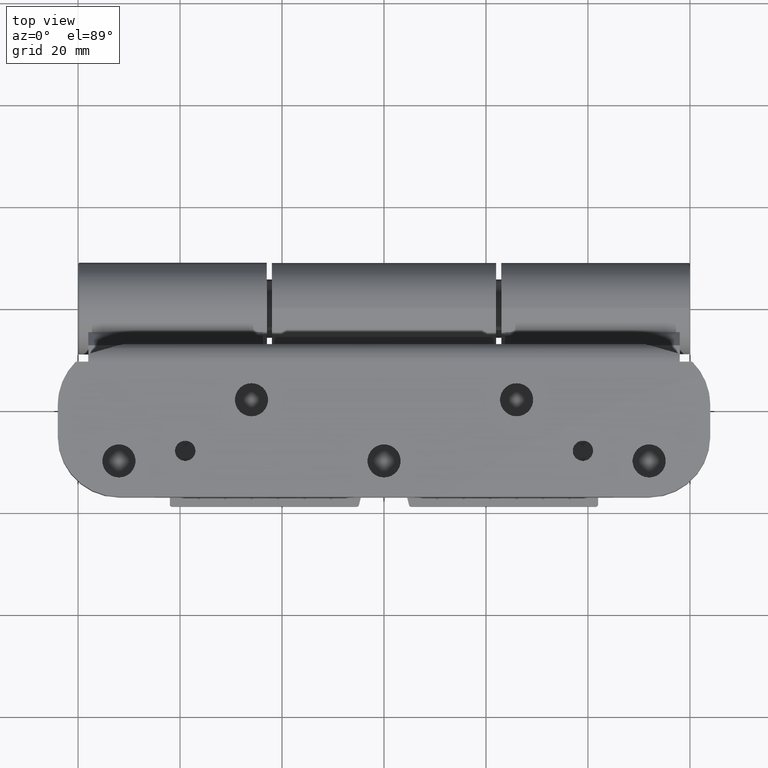
[diagram: clean part render]
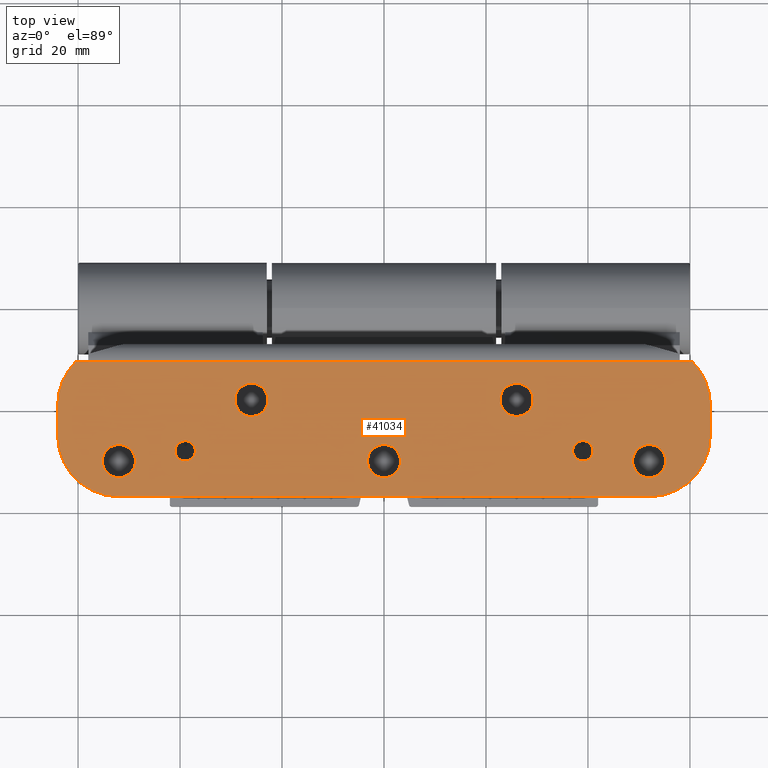
[diagram: same view with one face highlighted and labeled with its STEP entity id]
A machine part, top view. The second image highlights one B-rep face of the part: STEP entity #41034.
In plain terms, the highlighted planar face has unit normal (0, -0, 1).
Its self-contained STEP definition (entity closure, byte-faithful):
#560 = CIRCLE ( 'NONE', #54101, 11.99999999999998934 ) ;
#714 = CARTESIAN_POINT ( 'NONE',  ( 2.775557561562891351E-14, 51.99999999999999289, 0.000000000000000000 ) ) ;
#1092 = EDGE_LOOP ( 'NONE', ( #42553, #22039 ) ) ;
#1122 = DIRECTION ( 'NONE',  ( 5.916456789157588541E-31, 1.295404630198729935E-30, 1.000000000000000000 ) ) ;
#1731 = CARTESIAN_POINT ( 'NONE',  ( -10.24999999999996447, 51.99999999999997868, 6.938893903907229955E-15 ) ) ;
#1735 = ORIENTED_EDGE ( 'NONE', *, *, #49927, .T. ) ;
#1814 = LINE ( 'NONE', #51822, #15876 ) ;
#1911 = CARTESIAN_POINT ( 'NONE',  ( -3.749999999999964917, 51.99999999999997868, 6.938893903907229955E-15 ) ) ;
#2353 = EDGE_CURVE ( 'NONE', #16755, #28416, #11041, .T. ) ;
#2354 = LINE ( 'NONE', #19106, #8115 ) ;
#2915 = CARTESIAN_POINT ( 'NONE',  ( -18.00000000000002842, -52.00000000000002132, 3.686287386450715076E-15 ) ) ;
#3455 = FACE_BOUND ( 'NONE', #1092, .T. ) ;
#4060 = DIRECTION ( 'NONE',  ( 5.916456789157588541E-31, 1.295404630198729935E-30, 1.000000000000000000 ) ) ;
#4107 = VERTEX_POINT ( 'NONE', #42073 ) ;
#4224 = ORIENTED_EDGE ( 'NONE', *, *, #23170, .T. ) ;
#4265 = FACE_BOUND ( 'NONE', #30705, .T. ) ;
#4662 = CARTESIAN_POINT ( 'NONE',  ( -4.163336342344337027E-14, -64.00000000000000000, 0.000000000000000000 ) ) ;
#4967 = CARTESIAN_POINT ( 'NONE',  ( -26.50000000000003553, -60.47053717304873288, 1.040834085586084257E-14 ) ) ;
#5352 = DIRECTION ( 'NONE',  ( 1.000000000000000000, 6.661338147750980658E-16, 4.740750632337811128E-31 ) ) ;
#6246 = EDGE_CURVE ( 'NONE', #35376, #46714, #28412, .T. ) ;
#6343 = CARTESIAN_POINT ( 'NONE',  ( -10.25000000000003375, -52.00000000000002132, 6.938893903907229955E-15 ) ) ;
#6591 = ORIENTED_EDGE ( 'NONE', *, *, #2353, .T. ) ;
#6663 = ORIENTED_EDGE ( 'NONE', *, *, #37140, .F. ) ;
#6886 = CARTESIAN_POINT ( 'NONE',  ( 4.163336342344337027E-14, 64.00000000000000000, 0.000000000000000000 ) ) ;
#6997 = CARTESIAN_POINT ( 'NONE',  ( -12.00000000000002842, -52.00000000000004263, 3.686287386450715076E-15 ) ) ;
#7618 = CIRCLE ( 'NONE', #41832, 3.250000000000000000 ) ;
#7898 = ORIENTED_EDGE ( 'NONE', *, *, #40430, .T. ) ;
#8115 = VECTOR ( 'NONE', #35891, 1000.000000000000000 ) ;
#8311 = DIRECTION ( 'NONE',  ( -1.224646799147359370E-16, -1.376982494605543984E-30, -1.000000000000000000 ) ) ;
#8331 = EDGE_LOOP ( 'NONE', ( #17570, #20681, #6663, #47958, #19117, #11452, #7898, #4224, #37010, #41591 ) ) ;
#8461 = CARTESIAN_POINT ( 'NONE',  ( -17.99999999999995381, 63.99999999999997158, 3.686287386450715076E-15 ) ) ;
#8570 = DIRECTION ( 'NONE',  ( -1.000000000000000000, -5.782411586589355667E-16, 1.224646799147347537E-16 ) ) ;
#9469 = CARTESIAN_POINT ( 'NONE',  ( -6.999999999999999112, -4.662936703425689024E-15, 6.938893903907228378E-15 ) ) ;
#9549 = VERTEX_POINT ( 'NONE', #45961 ) ;
#9605 = CIRCLE ( 'NONE', #14851, 3.249999999999999556 ) ;
#9634 = DIRECTION ( 'NONE',  ( -6.661338147750984602E-16, -1.000000000000000000, -1.295404630198729585E-30 ) ) ;
#9659 = EDGE_CURVE ( 'NONE', #16586, #44807, #33892, .T. ) ;
#10056 = EDGE_CURVE ( 'NONE', #27083, #24305, #36575, .T. ) ;
#10661 = EDGE_CURVE ( 'NONE', #46137, #24642, #32240, .T. ) ;
#10763 = VERTEX_POINT ( 'NONE', #28988 ) ;
#11041 = CIRCLE ( 'NONE', #11956, 2.000000000000000000 ) ;
#11343 = CIRCLE ( 'NONE', #49075, 3.249999999999999556 ) ;
#11452 = ORIENTED_EDGE ( 'NONE', *, *, #40993, .T. ) ;
#11456 = DIRECTION ( 'NONE',  ( 1.000000000000000000, 0.000000000000000000, 6.018531076210112041E-31 ) ) ;
#11598 = EDGE_CURVE ( 'NONE', #14594, #46137, #37929, .T. ) ;
#11610 = CARTESIAN_POINT ( 'NONE',  ( -7.000000000000033751, -52.00000000000002132, 6.938893903907228378E-15 ) ) ;
#11767 = EDGE_LOOP ( 'NONE', ( #46065, #17457 ) ) ;
#11956 = AXIS2_PLACEMENT_3D ( 'NONE', #15023, #49100, #11456 ) ;
#12033 = AXIS2_PLACEMENT_3D ( 'NONE', #6997, #24601, #19914 ) ;
#12207 = ORIENTED_EDGE ( 'NONE', *, *, #51873, .T. ) ;
#12904 = CARTESIAN_POINT ( 'NONE',  ( -26.49999999999996803, 57.99999999999997868, 6.938893903907228378E-15 ) ) ;
#12927 = AXIS2_PLACEMENT_3D ( 'NONE', #21098, #4060, #46642 ) ;
#13022 = CARTESIAN_POINT ( 'NONE',  ( -26.50000000000000000, -1.765254609154010259E-14, 6.938893903907228378E-15 ) ) ;
#13033 = AXIS2_PLACEMENT_3D ( 'NONE', #34023, #37622, #49968 ) ;
#13343 = EDGE_LOOP ( 'NONE', ( #12207, #14859 ) ) ;
#13554 = DIRECTION ( 'NONE',  ( 6.661338147750984602E-16, 1.000000000000000000, 1.295404630198729585E-30 ) ) ;
#13754 = AXIS2_PLACEMENT_3D ( 'NONE', #36567, #24749, #20611 ) ;
#14422 = VERTEX_POINT ( 'NONE', #1731 ) ;
#14594 = VERTEX_POINT ( 'NONE', #16256 ) ;
#14851 = AXIS2_PLACEMENT_3D ( 'NONE', #47005, #1122, #39040 ) ;
#14859 = ORIENTED_EDGE ( 'NONE', *, *, #6246, .T. ) ;
#15023 = CARTESIAN_POINT ( 'NONE',  ( -9.000000000000035527, -39.00000000000001421, 2.168404344971008868E-16 ) ) ;
#15083 = CARTESIAN_POINT ( 'NONE',  ( -6.999999999999980460, 38.99999999999998579, 2.168404344971020947E-16 ) ) ;
#15462 = CARTESIAN_POINT ( 'NONE',  ( -18.99999999999998579, 25.99999999999998579, 2.168404344971008868E-16 ) ) ;
#15683 = CARTESIAN_POINT ( 'NONE',  ( -7.000000000000035527, -39.00000000000001421, 2.168404344971020947E-16 ) ) ;
#15816 = DIRECTION ( 'NONE',  ( -1.224646799147347537E-16, -1.376982494605543108E-30, -1.000000000000000000 ) ) ;
#15876 = VECTOR ( 'NONE', #19104, 1000.000000000000000 ) ;
#16087 = FACE_BOUND ( 'NONE', #19542, .T. ) ;
#16225 = CIRCLE ( 'NONE', #49571, 3.250000000000000000 ) ;
#16256 = CARTESIAN_POINT ( 'NONE',  ( -18.00000000000003553, -64.00000000000002842, 3.686287386450715076E-15 ) ) ;
#16279 = DIRECTION ( 'NONE',  ( 5.916456789157588541E-31, 1.295404630198729935E-30, 1.000000000000000000 ) ) ;
#16348 = CARTESIAN_POINT ( 'NONE',  ( 4.163336342344337027E-14, 64.00000000000000000, 0.000000000000000000 ) ) ;
#16493 = DIRECTION ( 'NONE',  ( -1.224646799147359370E-16, -1.376982494605543984E-30, -1.000000000000000000 ) ) ;
#16586 = VERTEX_POINT ( 'NONE', #38134 ) ;
#16673 = EDGE_CURVE ( 'NONE', #46107, #14422, #22903, .T. ) ;
#16755 = VERTEX_POINT ( 'NONE', #51550 ) ;
#16763 = EDGE_CURVE ( 'NONE', #51784, #39099, #1814, .T. ) ;
#16935 = DIRECTION ( 'NONE',  ( 5.916456789157588541E-31, 1.295404630198729935E-30, 1.000000000000000000 ) ) ;
#17027 = VERTEX_POINT ( 'NONE', #42179 ) ;
#17249 = CARTESIAN_POINT ( 'NONE',  ( -8.999999999999980460, 38.99999999999998579, 2.168404344971008868E-16 ) ) ;
#17457 = ORIENTED_EDGE ( 'NONE', *, *, #47047, .T. ) ;
#17570 = ORIENTED_EDGE ( 'NONE', *, *, #46373, .F. ) ;
#18498 = EDGE_CURVE ( 'NONE', #30611, #10763, #16225, .T. ) ;
#18566 = CARTESIAN_POINT ( 'NONE',  ( -26.49999999999996803, 60.47053717304866893, 6.938893903907228378E-15 ) ) ;
#18658 = CARTESIAN_POINT ( 'NONE',  ( -12.00000000000003908, -64.00000000000002842, 3.686287386450715076E-15 ) ) ;
#19104 = DIRECTION ( 'NONE',  ( 6.661338147750984602E-16, 1.000000000000000000, 1.295404630198729585E-30 ) ) ;
#19106 = CARTESIAN_POINT ( 'NONE',  ( 4.163336342344337027E-14, 64.00000000000000000, 0.000000000000000000 ) ) ;
#19117 = ORIENTED_EDGE ( 'NONE', *, *, #28355, .T. ) ;
#19264 = DIRECTION ( 'NONE',  ( -6.661338147750984602E-16, -1.000000000000000000, -1.295404630198729585E-30 ) ) ;
#19542 = EDGE_LOOP ( 'NONE', ( #1735, #40909 ) ) ;
#19914 = DIRECTION ( 'NONE',  ( -1.000000000000000000, -5.782411586589355667E-16, 1.224646799147347537E-16 ) ) ;
#19937 = FACE_OUTER_BOUND ( 'NONE', #8331, .T. ) ;
#20611 = DIRECTION ( 'NONE',  ( 1.000000000000000000, 0.000000000000000000, 6.018531076210112041E-31 ) ) ;
#20620 = ORIENTED_EDGE ( 'NONE', *, *, #9659, .T. ) ;
#20681 = ORIENTED_EDGE ( 'NONE', *, *, #16763, .T. ) ;
#20954 = CARTESIAN_POINT ( 'NONE',  ( -11.99999999999995914, 51.99999999999997158, 3.686287386450715076E-15 ) ) ;
#20997 = EDGE_CURVE ( 'NONE', #41976, #40957, #37782, .T. ) ;
#21029 = FACE_BOUND ( 'NONE', #11767, .T. ) ;
#21098 = CARTESIAN_POINT ( 'NONE',  ( -7.000000000000033751, -52.00000000000002132, 6.938893903907228378E-15 ) ) ;
#21375 = EDGE_CURVE ( 'NONE', #44807, #16586, #40123, .T. ) ;
#21726 = VECTOR ( 'NONE', #13554, 1000.000000000000000 ) ;
#22039 = ORIENTED_EDGE ( 'NONE', *, *, #51163, .T. ) ;
#22617 = CARTESIAN_POINT ( 'NONE',  ( -3.749999999999999556, -2.498001805406620754E-15, 6.938893903907229955E-15 ) ) ;
#22631 = VECTOR ( 'NONE', #41227, 1000.000000000000000 ) ;
#22747 = CARTESIAN_POINT ( 'NONE',  ( -15.75000000000001066, -26.00000000000001066, 2.168404344971028096E-16 ) ) ;
#22895 = AXIS2_PLACEMENT_3D ( 'NONE', #17249, #51064, #38710 ) ;
#22903 = CIRCLE ( 'NONE', #38684, 3.250000000000000000 ) ;
#22970 = AXIS2_PLACEMENT_3D ( 'NONE', #45917, #16493, #33274 ) ;
#22974 = CARTESIAN_POINT ( 'NONE',  ( -6.999999999999964473, 51.99999999999997868, 6.938893903907228378E-15 ) ) ;
#23170 = EDGE_CURVE ( 'NONE', #27733, #24642, #40714, .T. ) ;
#23589 = CIRCLE ( 'NONE', #13033, 3.250000000000000000 ) ;
#24229 = CARTESIAN_POINT ( 'NONE',  ( -10.99999999999998046, 38.99999999999998579, 2.168404344971020947E-16 ) ) ;
#24263 = DIRECTION ( 'NONE',  ( 5.916456789157588541E-31, 1.295404630198729935E-30, 1.000000000000000000 ) ) ;
#24305 = VERTEX_POINT ( 'NONE', #24229 ) ;
#24323 = CARTESIAN_POINT ( 'NONE',  ( -19.00000000000001066, -26.00000000000001421, 2.168404344971008868E-16 ) ) ;
#24601 = DIRECTION ( 'NONE',  ( 1.224646799147359370E-16, 1.376982494605543984E-30, 1.000000000000000000 ) ) ;
#24642 = VERTEX_POINT ( 'NONE', #42867 ) ;
#24749 = DIRECTION ( 'NONE',  ( 5.916456789157588541E-31, 1.295404630198729935E-30, 1.000000000000000000 ) ) ;
#24766 = AXIS2_PLACEMENT_3D ( 'NONE', #20954, #8311, #8570 ) ;
#26008 = DIRECTION ( 'NONE',  ( 1.000000000000000000, 0.000000000000000000, 6.018531076210112041E-31 ) ) ;
#26667 = LINE ( 'NONE', #31314, #45714 ) ;
#27083 = VERTEX_POINT ( 'NONE', #15083 ) ;
#27354 = DIRECTION ( 'NONE',  ( 5.916456789157588541E-31, 1.295404630198729935E-30, 1.000000000000000000 ) ) ;
#27401 = EDGE_CURVE ( 'NONE', #24305, #27083, #43097, .T. ) ;
#27610 = EDGE_LOOP ( 'NONE', ( #44576, #29860 ) ) ;
#27733 = VERTEX_POINT ( 'NONE', #714 ) ;
#27831 = DIRECTION ( 'NONE',  ( 1.000000000000000000, 1.067522139062650671E-15, 5.925938290422264567E-31 ) ) ;
#28355 = EDGE_CURVE ( 'NONE', #40957, #51191, #44900, .T. ) ;
#28412 = CIRCLE ( 'NONE', #31900, 3.249999999999999556 ) ;
#28416 = VERTEX_POINT ( 'NONE', #15683 ) ;
#28988 = CARTESIAN_POINT ( 'NONE',  ( -10.24999999999999822, -6.429861391721865302E-15, 6.938893903907229955E-15 ) ) ;
#29585 = DIRECTION ( 'NONE',  ( 1.000000000000000000, 1.067522139062650671E-15, 5.925938290422264567E-31 ) ) ;
#29860 = ORIENTED_EDGE ( 'NONE', *, *, #27401, .T. ) ;
#30167 = EDGE_CURVE ( 'NONE', #17027, #4107, #42392, .T. ) ;
#30611 = VERTEX_POINT ( 'NONE', #22617 ) ;
#30705 = EDGE_LOOP ( 'NONE', ( #20620, #36808 ) ) ;
#31314 = CARTESIAN_POINT ( 'NONE',  ( -26.49999999999995737, 63.99999999999997158, 6.938893903907228378E-15 ) ) ;
#31900 = AXIS2_PLACEMENT_3D ( 'NONE', #24323, #32564, #49587 ) ;
#32240 = CIRCLE ( 'NONE', #12033, 12.00000000000000355 ) ;
#32564 = DIRECTION ( 'NONE',  ( 5.916456789157588541E-31, 1.295404630198729935E-30, 1.000000000000000000 ) ) ;
#32584 = DIRECTION ( 'NONE',  ( -1.000000000000000000, -6.661338147750980658E-16, 1.224646799147347537E-16 ) ) ;
#33274 = DIRECTION ( 'NONE',  ( -1.000000000000000000, -5.782411586589362569E-16, 1.224646799147347784E-16 ) ) ;
#33550 = ORIENTED_EDGE ( 'NONE', *, *, #48184, .T. ) ;
#33892 = CIRCLE ( 'NONE', #41821, 3.250000000000000000 ) ;
#34023 = CARTESIAN_POINT ( 'NONE',  ( -6.999999999999999112, -4.662936703425689024E-15, 6.938893903907228378E-15 ) ) ;
#34530 = CARTESIAN_POINT ( 'NONE',  ( -18.99999999999998579, 25.99999999999998579, 2.168404344971008868E-16 ) ) ;
#34777 = DIRECTION ( 'NONE',  ( 5.916456789157588541E-31, 1.295404630198729935E-30, 1.000000000000000000 ) ) ;
#35376 = VERTEX_POINT ( 'NONE', #43567 ) ;
#35601 = CARTESIAN_POINT ( 'NONE',  ( -26.50000000000003553, -58.00000000000004263, 6.938893903907228378E-15 ) ) ;
#35891 = DIRECTION ( 'NONE',  ( 1.000000000000000000, 6.661338147750980658E-16, -1.224646799147347537E-16 ) ) ;
#36567 = CARTESIAN_POINT ( 'NONE',  ( -8.999999999999980460, 38.99999999999998579, 2.168404344971008868E-16 ) ) ;
#36575 = CIRCLE ( 'NONE', #13754, 2.000000000000000000 ) ;
#36808 = ORIENTED_EDGE ( 'NONE', *, *, #21375, .T. ) ;
#37010 = ORIENTED_EDGE ( 'NONE', *, *, #10661, .F. ) ;
#37140 = EDGE_CURVE ( 'NONE', #41976, #39099, #26667, .T. ) ;
#37261 = FACE_BOUND ( 'NONE', #37402, .T. ) ;
#37402 = EDGE_LOOP ( 'NONE', ( #33550, #6591 ) ) ;
#37622 = DIRECTION ( 'NONE',  ( 5.916456789157588541E-31, 1.295404630198729935E-30, 1.000000000000000000 ) ) ;
#37782 = LINE ( 'NONE', #13022, #21726 ) ;
#37929 = LINE ( 'NONE', #4662, #22631 ) ;
#37992 = AXIS2_PLACEMENT_3D ( 'NONE', #16348, #15816, #32584 ) ;
#38013 = AXIS2_PLACEMENT_3D ( 'NONE', #34530, #16935, #29585 ) ;
#38134 = CARTESIAN_POINT ( 'NONE',  ( -3.750000000000034195, -52.00000000000002132, 6.938893903907229955E-15 ) ) ;
#38684 = AXIS2_PLACEMENT_3D ( 'NONE', #22974, #27354, #44119 ) ;
#38710 = DIRECTION ( 'NONE',  ( 1.000000000000000000, 0.000000000000000000, 6.018531076210112041E-31 ) ) ;
#39040 = DIRECTION ( 'NONE',  ( 1.000000000000000000, 1.067522139062650671E-15, 5.925938290422264567E-31 ) ) ;
#39099 = VERTEX_POINT ( 'NONE', #35601 ) ;
#39272 = CIRCLE ( 'NONE', #46303, 2.000000000000000000 ) ;
#40123 = CIRCLE ( 'NONE', #12927, 3.250000000000000000 ) ;
#40430 = EDGE_CURVE ( 'NONE', #9549, #27733, #43190, .T. ) ;
#40714 = LINE ( 'NONE', #6886, #53414 ) ;
#40909 = ORIENTED_EDGE ( 'NONE', *, *, #30167, .T. ) ;
#40957 = VERTEX_POINT ( 'NONE', #18566 ) ;
#40993 = EDGE_CURVE ( 'NONE', #51191, #9549, #2354, .T. ) ;
#41034 = ADVANCED_FACE ( 'NONE', ( #21029, #16087, #3455, #37261, #19937, #41646, #4265, #50150 ), #54003, .T. ) ;
#41227 = DIRECTION ( 'NONE',  ( 1.000000000000000000, 6.661338147750980658E-16, -1.224646799147347537E-16 ) ) ;
#41591 = ORIENTED_EDGE ( 'NONE', *, *, #11598, .F. ) ;
#41646 = FACE_BOUND ( 'NONE', #27610, .T. ) ;
#41821 = AXIS2_PLACEMENT_3D ( 'NONE', #11610, #24263, #45143 ) ;
#41832 = AXIS2_PLACEMENT_3D ( 'NONE', #43032, #34777, #43296 ) ;
#41976 = VERTEX_POINT ( 'NONE', #12904 ) ;
#42073 = CARTESIAN_POINT ( 'NONE',  ( -15.74999999999998579, 25.99999999999998934, 2.168404344971028096E-16 ) ) ;
#42179 = CARTESIAN_POINT ( 'NONE',  ( -22.24999999999998579, 25.99999999999998224, 2.168404344971028096E-16 ) ) ;
#42392 = CIRCLE ( 'NONE', #38013, 3.249999999999999556 ) ;
#42553 = ORIENTED_EDGE ( 'NONE', *, *, #18498, .T. ) ;
#42867 = CARTESIAN_POINT ( 'NONE',  ( -2.775557561562891351E-14, -52.00000000000002132, 3.469446951953614189E-15 ) ) ;
#43008 = DIRECTION ( 'NONE',  ( 5.916456789157588541E-31, 1.295404630198729935E-30, 1.000000000000000000 ) ) ;
#43032 = CARTESIAN_POINT ( 'NONE',  ( -6.999999999999964473, 51.99999999999997868, 6.938893903907228378E-15 ) ) ;
#43097 = CIRCLE ( 'NONE', #22895, 2.000000000000000000 ) ;
#43190 = CIRCLE ( 'NONE', #24766, 12.00000000000000355 ) ;
#43296 = DIRECTION ( 'NONE',  ( 1.000000000000000000, 0.000000000000000000, 4.740750632337811128E-31 ) ) ;
#43567 = CARTESIAN_POINT ( 'NONE',  ( -22.25000000000001066, -26.00000000000001776, 2.168404344971028096E-16 ) ) ;
#44119 = DIRECTION ( 'NONE',  ( 1.000000000000000000, 0.000000000000000000, 4.740750632337811128E-31 ) ) ;
#44576 = ORIENTED_EDGE ( 'NONE', *, *, #10056, .T. ) ;
#44807 = VERTEX_POINT ( 'NONE', #6343 ) ;
#44900 = CIRCLE ( 'NONE', #22970, 11.99999999999998934 ) ;
#45143 = DIRECTION ( 'NONE',  ( 1.000000000000000000, 0.000000000000000000, 4.740750632337811128E-31 ) ) ;
#45714 = VECTOR ( 'NONE', #9634, 1000.000000000000000 ) ;
#45917 = CARTESIAN_POINT ( 'NONE',  ( -17.99999999999996803, 51.99999999999999289, 3.686287386450715076E-15 ) ) ;
#45961 = CARTESIAN_POINT ( 'NONE',  ( -11.99999999999995559, 63.99999999999997158, 3.686287386450715076E-15 ) ) ;
#46065 = ORIENTED_EDGE ( 'NONE', *, *, #16673, .T. ) ;
#46107 = VERTEX_POINT ( 'NONE', #1911 ) ;
#46137 = VERTEX_POINT ( 'NONE', #18658 ) ;
#46303 = AXIS2_PLACEMENT_3D ( 'NONE', #50467, #46896, #26008 ) ;
#46373 = EDGE_CURVE ( 'NONE', #51784, #14594, #560, .T. ) ;
#46642 = DIRECTION ( 'NONE',  ( 1.000000000000000000, 0.000000000000000000, 4.740750632337811128E-31 ) ) ;
#46714 = VERTEX_POINT ( 'NONE', #22747 ) ;
#46896 = DIRECTION ( 'NONE',  ( 5.916456789157588541E-31, 1.295404630198729935E-30, 1.000000000000000000 ) ) ;
#47005 = CARTESIAN_POINT ( 'NONE',  ( -19.00000000000001066, -26.00000000000001421, 2.168404344971008868E-16 ) ) ;
#47047 = EDGE_CURVE ( 'NONE', #14422, #46107, #7618, .T. ) ;
#47958 = ORIENTED_EDGE ( 'NONE', *, *, #20997, .T. ) ;
#48184 = EDGE_CURVE ( 'NONE', #28416, #16755, #39272, .T. ) ;
#48517 = DIRECTION ( 'NONE',  ( -1.000000000000000000, -5.782411586589362569E-16, 1.224646799147347784E-16 ) ) ;
#49075 = AXIS2_PLACEMENT_3D ( 'NONE', #15462, #16279, #27831 ) ;
#49100 = DIRECTION ( 'NONE',  ( 5.916456789157588541E-31, 1.295404630198729935E-30, 1.000000000000000000 ) ) ;
#49571 = AXIS2_PLACEMENT_3D ( 'NONE', #9469, #43008, #5352 ) ;
#49587 = DIRECTION ( 'NONE',  ( 1.000000000000000000, 1.067522139062650671E-15, 5.925938290422264567E-31 ) ) ;
#49927 = EDGE_CURVE ( 'NONE', #4107, #17027, #11343, .T. ) ;
#49968 = DIRECTION ( 'NONE',  ( 1.000000000000000000, 6.661338147750980658E-16, 4.740750632337811128E-31 ) ) ;
#50150 = FACE_BOUND ( 'NONE', #13343, .T. ) ;
#50467 = CARTESIAN_POINT ( 'NONE',  ( -9.000000000000035527, -39.00000000000001421, 2.168404344971008868E-16 ) ) ;
#51064 = DIRECTION ( 'NONE',  ( 5.916456789157588541E-31, 1.295404630198729935E-30, 1.000000000000000000 ) ) ;
#51163 = EDGE_CURVE ( 'NONE', #10763, #30611, #23589, .T. ) ;
#51191 = VERTEX_POINT ( 'NONE', #8461 ) ;
#51550 = CARTESIAN_POINT ( 'NONE',  ( -11.00000000000003553, -39.00000000000001421, 2.168404344971020947E-16 ) ) ;
#51784 = VERTEX_POINT ( 'NONE', #4967 ) ;
#51822 = CARTESIAN_POINT ( 'NONE',  ( -26.50000000000000000, -1.765254609154010259E-14, 6.938893903907228378E-15 ) ) ;
#51873 = EDGE_CURVE ( 'NONE', #46714, #35376, #9605, .T. ) ;
#52643 = DIRECTION ( 'NONE',  ( 1.224646799147359370E-16, 1.376982494605543984E-30, 1.000000000000000000 ) ) ;
#53414 = VECTOR ( 'NONE', #19264, 1000.000000000000000 ) ;
#54003 = PLANE ( 'NONE',  #37992 ) ;
#54101 = AXIS2_PLACEMENT_3D ( 'NONE', #2915, #52643, #48517 ) ;